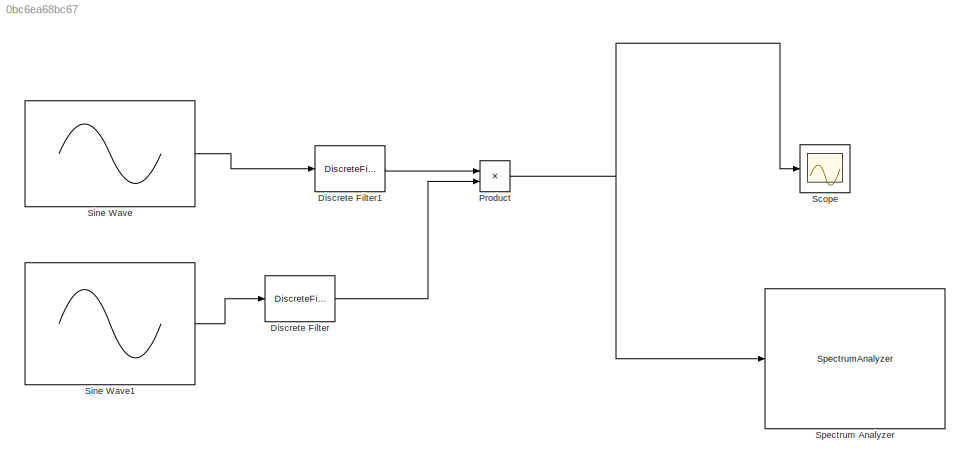
MODEL slx_0bc6ea68bc67
KIND model
CONFIG AbsTol = auto
CONFIG EnableMultiTasking = off
CONFIG FixedStep = auto
CONFIG MaxStep = auto
CONFIG MinStep = auto
CONFIG RelTol = 1e-3
CONFIG SampleTimeConstraint = Unconstrained
CONFIG SolverName = VariableStepAuto
CONFIG StartTime = 0.0
CONFIG StopTime = 10000
BLOCK [DiscreteFilter] Discrete Filter
  Denominator = [1 -0.7]
  FilterStructure = Direct form I
  InputPortMap = u0
BLOCK [DiscreteFilter] Discrete Filter1
  Denominator = [1 0.2  0.9]
  FilterStructure = Direct form I
  InputPortMap = u0
  Numerator = [1 0.875]
BLOCK [Product] Product
BLOCK [Scope] Scope
  Floating = off
  NumInputPorts = 1
  ScopeSpecificationString = Simulink.scopes.TimeScopeBlockCfg('CurrentConfiguration', extmgr.ConfigurationSet(extmgr.Configuration('Core','General UI',true),extmgr.Configuration('Core','Source UI',true),extmgr.Configuration('Sources','WiredSimulink',true),extmgr.Configuration('Visuals','Time Domain',true),extmgr.Configuration('Tools','Plot Navigation',true),extmgr.Configuration('Tools','Measurements',true)),'Version','2023b'...<+1ch>
BLOCK [Sin] Sine Wave
  SampleTime = 1
  SineType = Sample based
BLOCK [Sin] Sine Wave1
  SampleTime = 1
  SineType = Sample based
BLOCK [SpectrumAnalyzer] Spectrum Analyzer
  GraphicalSettings = {"GraphicalSettings":{"Style":{"BackgroundColor":[0.12941176470588237,0.12941176470588237,0.12941176470588237],"AxesColor":[0.07058823529411765,0.07058823529411765,0.07058823529411765],"LabelsColor":[0.8509803921568627,0.8509803921568627,0.8509803921568627],"PreserveColors":false,"Visible":[true],"LineStyle":["-"],"LineColor":[[1,1,0.06666666666666667]],"LineWidth":[1.5],"Marker":["none"],"FontSiz...<+928ch>
  ScopeFrameLocation = window
  Span = 1
  StartFrequency = -0.5
  StopFrequency = 0.5
  Visible = on
  WasSavedAsWebScope = on
  WindowPosition = [276.000000,58.000000,803.000000,500.000000,]
  YLimits = [-78.3186322,28.86514057]
LINE Discrete Filter1:1 -> Product:1
LINE Discrete Filter:1 -> Product:2
NET Product:1 -> Scope:1, Spectrum Analyzer:1
LINE Sine Wave1:1 -> Discrete Filter:1
LINE Sine Wave:1 -> Discrete Filter1:1
note: NET lines group one-source signal fan-out (src -> all destinations, sorted); 1:1 wires keep LINE
